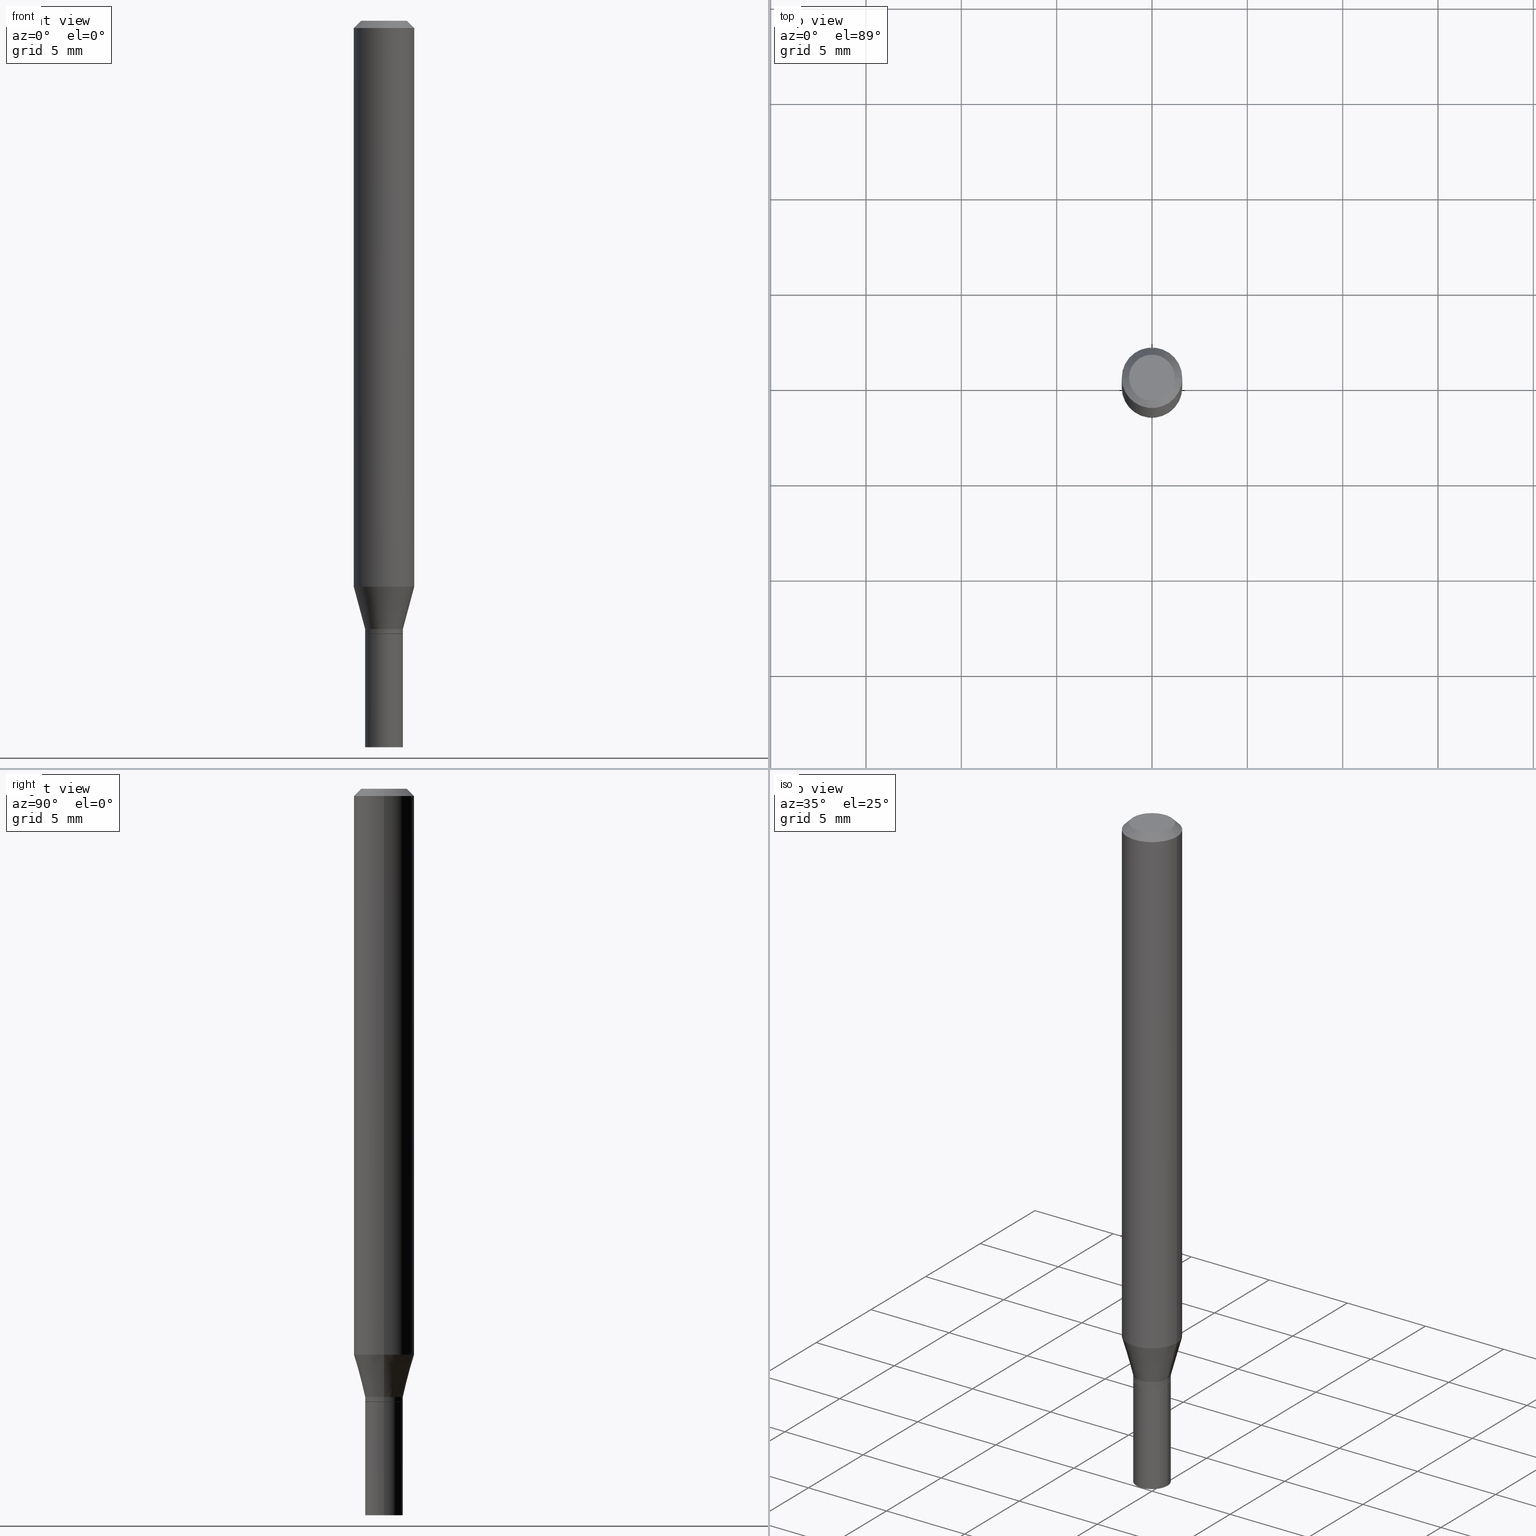
[diagram: canonical four-view strip — front | top / right | iso, engineering-drawing reading convention]
A machine part, canonical four-view strip (front | top / right | iso — engineering-drawing reading convention). The complete STEP part file that produces these views, byte-faithful:
ISO-10303-21;
HEADER;
FILE_DESCRIPTION (( 'STEP AP203' ),
    '1' );
FILE_NAME ('02459.STEP',
    '2024-03-18T20:43:25',
    ( '' ),
    ( '' ),
    'SwSTEP 2.0',
    'SolidWorks 2023',
    '' );
FILE_SCHEMA (( 'CONFIG_CONTROL_DESIGN' ));
ENDSEC;

DATA;
#1 = ORIENTED_EDGE ( 'NONE', *, *, #349, .T. ) ;
#2 = ORGANIZATION ( 'UNSPECIFIED', 'UNSPECIFIED', '' ) ;
#3 = CARTESIAN_POINT ( 'NONE',  ( -0.06250000000000000000, -3.634997286606259442E-15, -1.168296806022131262 ) ) ;
#4 = EDGE_CURVE ( 'NONE', #169, #399, #342, .T. ) ;
#5 = COORDINATED_UNIVERSAL_TIME_OFFSET ( 5, 0, .BEHIND. ) ;
#6 = AXIS2_PLACEMENT_3D ( 'NONE', #291, #462, #286 ) ;
#7 = AXIS2_PLACEMENT_3D ( 'NONE', #355, #358, #20 ) ;
#8 = DIRECTION ( 'NONE',  ( 1.000000000000000000, -6.982962677686274599E-15, 0.000000000000000000 ) ) ;
#9 = DATE_TIME_ROLE ( 'classification_date' ) ;
#10 = VERTEX_POINT ( 'NONE', #198 ) ;
#11 = CARTESIAN_POINT ( 'NONE',  ( 0.06250000000000000000, -4.811533449433679005E-16, -0.01499999999999999944 ) ) ;
#12 = APPROVAL_STATUS ( 'not_yet_approved' ) ;
#13 = EDGE_LOOP ( 'NONE', ( #346, #391 ) ) ;
#14 = ORIENTED_EDGE ( 'NONE', *, *, #257, .T. ) ;
#15 = VERTEX_POINT ( 'NONE', #236 ) ;
#16 = CIRCLE ( 'NONE', #360, 0.03899999999999992362 ) ;
#17 = CONICAL_SURFACE ( 'NONE', #385, 0.03899999999999990974, 0.2617993877991496854 ) ;
#18 = EDGE_LOOP ( 'NONE', ( #133, #307, #200, #410 ) ) ;
#19 = APPROVAL_STATUS ( 'not_yet_approved' ) ;
#20 = DIRECTION ( 'NONE',  ( 1.000000000000000000, -6.982962677686271444E-15, 0.000000000000000000 ) ) ;
#21 = LINE ( 'NONE', #92, #314 ) ;
#22 = CARTESIAN_POINT ( 'NONE',  ( 3.094740774227290865E-29, -4.418469634306001449E-15, -1.265500000000000291 ) ) ;
#23 = CARTESIAN_POINT ( 'NONE',  ( -0.06250000000000000000, 4.440892098500626162E-16, -3.074334431409316114E-30 ) ) ;
#24 = CARTESIAN_POINT ( 'NONE',  ( -0.06250000000000000000, -1.621640148419421952E-15, -0.01499999999999999944 ) ) ;
#25 = LINE ( 'NONE', #69, #352 ) ;
#26 = VECTOR ( 'NONE', #287, 39.37007874015748143 ) ;
#27 = FACE_OUTER_BOUND ( 'NONE', #316, .T. ) ;
#28 = PERSON_AND_ORGANIZATION_ROLE ( 'design_supplier' ) ;
#29 = DIRECTION ( 'NONE',  ( -2.445468806185136597E-29, 3.491481338843145583E-15, 1.000000000000000000 ) ) ;
#30 = FACE_OUTER_BOUND ( 'NONE', #457, .T. ) ;
#31 = DIRECTION ( 'NONE',  ( -2.445468806185136877E-29, 3.491481338843145188E-15, 1.000000000000000000 ) ) ;
#32 = FACE_OUTER_BOUND ( 'NONE', #13, .T. ) ;
#33 = EDGE_LOOP ( 'NONE', ( #271, #420, #387, #238 ) ) ;
#34 = PERSON_AND_ORGANIZATION ( #339, #2 ) ;
#35 = DIRECTION ( 'NONE',  ( -0.7071067811865352493, 2.468850131082128476E-15, -0.7071067811865597852 ) ) ;
#36 = EDGE_CURVE ( 'NONE', #256, #351, #354, .T. ) ;
#37 = AXIS2_PLACEMENT_3D ( 'NONE', #79, #272, #382 ) ;
#38 = PERSON_AND_ORGANIZATION_ROLE ( 'creator' ) ;
#39 = FACE_OUTER_BOUND ( 'NONE', #33, .T. ) ;
#40 = CIRCLE ( 'NONE', #292, 0.03899999999999990974 ) ;
#41 = FACE_OUTER_BOUND ( 'NONE', #123, .T. ) ;
#42 = COORDINATED_UNIVERSAL_TIME_OFFSET ( 5, 0, .BEHIND. ) ;
#43 = DATE_AND_TIME ( #373, #119 ) ;
#44 = PLANE ( 'NONE',  #37 ) ;
#45 = PERSON_AND_ORGANIZATION_ROLE ( 'classification_officer' ) ;
#46 = CONICAL_SURFACE ( 'NONE', #75, 0.06250000000000000000, 0.7853981633974309595 ) ;
#47 = CARTESIAN_POINT ( 'NONE',  ( 0.000000000000000000, 0.000000000000000000, 0.000000000000000000 ) ) ;
#48 = ORIENTED_EDGE ( 'NONE', *, *, #243, .F. ) ;
#49 = ORIENTED_EDGE ( 'NONE', *, *, #428, .T. ) ;
#50 = EDGE_CURVE ( 'NONE', #103, #129, #16, .T. ) ;
#51 = CC_DESIGN_DATE_AND_TIME_ASSIGNMENT ( #343, #9, ( #465 ) ) ;
#52 = DESIGN_CONTEXT ( 'detailed design', #56, 'design' ) ;
#53 = EDGE_LOOP ( 'NONE', ( #334, #111 ) ) ;
#54 =( LENGTH_UNIT ( ) NAMED_UNIT ( * ) SI_UNIT ( $, .METRE. ) );
#55 = CARTESIAN_POINT ( 'NONE',  ( -0.03899999999999990974, -4.108188894640553562E-15, -1.256000000000000227 ) ) ;
#56 = APPLICATION_CONTEXT ( 'configuration controlled 3d designs of mechanical parts and assemblies' ) ;
#57 = ORIENTED_EDGE ( 'NONE', *, *, #265, .F. ) ;
#58 = DIRECTION ( 'NONE',  ( 1.000000000000000000, -6.982962677686266711E-15, 4.876176775795936353E-29 ) ) ;
#59 = VECTOR ( 'NONE', #31, 39.37007874015748143 ) ;
#60 = CARTESIAN_POINT ( 'NONE',  ( 0.000000000000000000, 0.000000000000000000, 0.000000000000000000 ) ) ;
#61 = DIRECTION ( 'NONE',  ( 1.000000000000000000, -6.982962677686272233E-15, 0.000000000000000000 ) ) ;
#62 = DIRECTION ( 'NONE',  ( 0.7071067811865656694, -2.468850131082446387E-15, 0.7071067811865294761 ) ) ;
#63 = MANIFOLD_SOLID_BREP ( 'Body-Move/Copy2[2]', #273 ) ;
#64 = DIRECTION ( 'NONE',  ( 1.000000000000000000, -6.982962677686266711E-15, 4.876176775795935793E-29 ) ) ;
#65 = EDGE_LOOP ( 'NONE', ( #239, #409, #383, #447 ) ) ;
#66 = PRODUCT_DEFINITION_FORMATION_WITH_SPECIFIED_SOURCE ( 'ANY', '', #270, .NOT_KNOWN. ) ;
#67 = APPROVAL_ROLE ( '' ) ;
#68 = FACE_OUTER_BOUND ( 'NONE', #384, .T. ) ;
#69 = CARTESIAN_POINT ( 'NONE',  ( -0.03849999999999999256, -4.146656421707783743E-15, -1.266000000000000014 ) ) ;
#70 = CARTESIAN_POINT ( 'NONE',  ( 0.03899999999999999994, -5.509557552694482989E-15, -1.500000000000000222 ) ) ;
#71 = CARTESIAN_POINT ( 'NONE',  ( -0.06250000000000000000, 3.840629472727444916E-16, -0.01499999999999999944 ) ) ;
#72 = EDGE_CURVE ( 'NONE', #282, #256, #40, .T. ) ;
#73 = DATE_TIME_ROLE ( 'creation_date' ) ;
#74 = DIRECTION ( 'NONE',  ( 1.000000000000000000, -6.982962677686271444E-15, 0.000000000000000000 ) ) ;
#75 = AXIS2_PLACEMENT_3D ( 'NONE', #116, #302, #402 ) ;
#76 = ORIENTED_EDGE ( 'NONE', *, *, #117, .F. ) ;
#77 = ORIENTED_EDGE ( 'NONE', *, *, #91, .T. ) ;
#78 = EDGE_CURVE ( 'NONE', #234, #345, #138, .T. ) ;
#79 = CARTESIAN_POINT ( 'NONE',  ( 3.095963508630383106E-29, -4.420215374975422163E-15, -1.266000000000000014 ) ) ;
#80 = VECTOR ( 'NONE', #62, 39.37007874015748143 ) ;
#81 = COORDINATED_UNIVERSAL_TIME_OFFSET ( 5, 0, .BEHIND. ) ;
#82 = DIRECTION ( 'NONE',  ( 1.000000000000000000, -6.982962677686266711E-15, 4.876176775795936353E-29 ) ) ;
#83 = DIRECTION ( 'NONE',  ( 1.000000000000000000, -6.982962677686258033E-15, 0.000000000000000000 ) ) ;
#84 = ORIENTED_EDGE ( 'NONE', *, *, #157, .T. ) ;
#85 = ORIENTED_EDGE ( 'NONE', *, *, #243, .T. ) ;
#86 = AXIS2_PLACEMENT_3D ( 'NONE', #454, #415, #134 ) ;
#87 = ORIENTED_EDGE ( 'NONE', *, *, #36, .F. ) ;
#88 = FACE_OUTER_BOUND ( 'NONE', #110, .T. ) ;
#89 = ORIENTED_EDGE ( 'NONE', *, *, #349, .F. ) ;
#90 = CARTESIAN_POINT ( 'NONE',  ( 0.000000000000000000, 0.000000000000000000, 0.000000000000000000 ) ) ;
#91 = EDGE_CURVE ( 'NONE', #15, #10, #240, .T. ) ;
#92 = CARTESIAN_POINT ( 'NONE',  ( 0.03899999999999990974, -4.657636106016756115E-15, -1.256000000000000227 ) ) ;
#93 = MECHANICAL_CONTEXT ( 'NONE', #280, 'mechanical' ) ;
#94 = DIRECTION ( 'NONE',  ( -2.445468806185136597E-29, 3.491481338843145583E-15, 1.000000000000000000 ) ) ;
#95 = VECTOR ( 'NONE', #35, 39.37007874015748143 ) ;
#96 = AXIS2_PLACEMENT_3D ( 'NONE', #182, #417, #8 ) ;
#97 = FACE_OUTER_BOUND ( 'NONE', #340, .T. ) ;
#98 = APPROVAL_DATE_TIME ( #210, #126 ) ;
#99 = ORIENTED_EDGE ( 'NONE', *, *, #264, .F. ) ;
#100 = VERTEX_POINT ( 'NONE', #176 ) ;
#101 = CARTESIAN_POINT ( 'NONE',  ( 0.06250000000000000000, -4.515521663811713727E-15, -1.168296806022131262 ) ) ;
#102 = DIRECTION ( 'NONE',  ( -2.445468806185136597E-29, 3.491481338843145583E-15, 1.000000000000000000 ) ) ;
#103 = VERTEX_POINT ( 'NONE', #435 ) ;
#104 = AXIS2_PLACEMENT_3D ( 'NONE', #464, #211, #107 ) ;
#105 = CIRCLE ( 'NONE', #378, 0.03899999999999999994 ) ;
#106 = DIRECTION ( 'NONE',  ( -2.445468806185136597E-29, 3.491481338843145583E-15, 1.000000000000000000 ) ) ;
#107 = DIRECTION ( 'NONE',  ( -1.000000000000000000, 6.982962677686265922E-15, -4.876176775795935793E-29 ) ) ;
#108 = EDGE_LOOP ( 'NONE', ( #381, #414, #165, #220 ) ) ;
#109 = DIRECTION ( 'NONE',  ( -2.445468806185136597E-29, 3.491481338843145583E-15, 1.000000000000000000 ) ) ;
#110 = EDGE_LOOP ( 'NONE', ( #269, #195, #289, #197 ) ) ;
#111 = ORIENTED_EDGE ( 'NONE', *, *, #408, .F. ) ;
#112 = ADVANCED_FACE ( 'NONE', ( #438 ), #323, .T. ) ;
#113 = APPROVAL ( #258, 'UNSPECIFIED' ) ;
#114 = VECTOR ( 'NONE', #423, 39.37007874015748143 ) ;
#115 = AXIS2_PLACEMENT_3D ( 'NONE', #400, #266, #295 ) ;
#116 = CARTESIAN_POINT ( 'NONE',  ( 3.668203209277705088E-31, -5.237222008264718399E-17, -0.01499999999999999944 ) ) ;
#117 = EDGE_CURVE ( 'NONE', #256, #282, #188, .T. ) ;
#118 = AXIS2_PLACEMENT_3D ( 'NONE', #247, #430, #215 ) ;
#119 = LOCAL_TIME ( 16, 43, 25.00000000000000000, #81 ) ;
#120 = PERSON_AND_ORGANIZATION ( #339, #2 ) ;
#121 = FACE_OUTER_BOUND ( 'NONE', #65, .T. ) ;
#122 = ORIENTED_EDGE ( 'NONE', *, *, #237, .F. ) ;
#123 = EDGE_LOOP ( 'NONE', ( #99, #449, #431, #76 ) ) ;
#124 = ADVANCED_FACE ( 'NONE', ( #32 ), #221, .F. ) ;
#125 = CARTESIAN_POINT ( 'NONE',  ( -0.03849999999999999256, -4.144007194533673331E-15, -1.266000000000000014 ) ) ;
#126 = APPROVAL ( #19, 'UNSPECIFIED' ) ;
#127 = VERTEX_POINT ( 'NONE', #394 ) ;
#128 = APPROVAL_ROLE ( '' ) ;
#129 = VERTEX_POINT ( 'NONE', #179 ) ;
#130 = AXIS2_PLACEMENT_3D ( 'NONE', #140, #142, #74 ) ;
#131 = AXIS2_PLACEMENT_3D ( 'NONE', #366, #422, #329 ) ;
#132 = CC_DESIGN_APPROVAL ( #299, ( #465 ) ) ;
#133 = ORIENTED_EDGE ( 'NONE', *, *, #407, .T. ) ;
#134 = DIRECTION ( 'NONE',  ( 1.000000000000000000, -6.982962677686271444E-15, 0.000000000000000000 ) ) ;
#135 = ORIENTED_EDGE ( 'NONE', *, *, #208, .F. ) ;
#136 = LINE ( 'NONE', #23, #189 ) ;
#137 = PERSON_AND_ORGANIZATION_ROLE ( 'design_owner' ) ;
#138 = LINE ( 'NONE', #184, #312 ) ;
#139 = CIRCLE ( 'NONE', #152, 0.06250000000000000000 ) ;
#140 = CARTESIAN_POINT ( 'NONE',  ( 3.095963508630383106E-29, -4.420215374975422163E-15, -1.266000000000000014 ) ) ;
#141 = DIRECTION ( 'NONE',  ( 1.000000000000000000, -6.982962677686258033E-15, 0.000000000000000000 ) ) ;
#142 = DIRECTION ( 'NONE',  ( -2.445468806185136597E-29, 3.491481338843145583E-15, 1.000000000000000000 ) ) ;
#143 = EDGE_LOOP ( 'NONE', ( #310, #85, #451, #463 ) ) ;
#144 = CARTESIAN_POINT ( 'NONE',  ( -1.280979716297259006E-44, 1.828899540070383801E-30, 5.238176471756152972E-16 ) ) ;
#145 = CONICAL_SURFACE ( 'NONE', #404, 0.06250000000000000000, 0.7853981633974309595 ) ;
#146 = APPROVAL_PERSON_ORGANIZATION ( #34, #113, #67 ) ;
#147 = PLANE ( 'NONE',  #115 ) ;
#148 = DIRECTION ( 'NONE',  ( 2.438088387897960049E-29, -3.491481338843145188E-15, -1.000000000000000000 ) ) ;
#149 = DIRECTION ( 'NONE',  ( 1.000000000000000000, -6.982962677686266711E-15, 0.000000000000000000 ) ) ;
#150 = PRODUCT_DEFINITION_SHAPE ( 'NONE', 'NONE',  #379 ) ;
#151 = AXIS2_PLACEMENT_3D ( 'NONE', #460, #29, #64 ) ;
#152 = AXIS2_PLACEMENT_3D ( 'NONE', #392, #217, #363 ) ;
#153 = FACE_OUTER_BOUND ( 'NONE', #180, .T. ) ;
#154 = ADVANCED_FACE ( 'NONE', ( #68 ), #224, .F. ) ;
#155 = EDGE_CURVE ( 'NONE', #327, #345, #283, .T. ) ;
#156 = APPROVAL_ROLE ( '' ) ;
#157 = EDGE_CURVE ( 'NONE', #10, #15, #412, .T. ) ;
#158 = VECTOR ( 'NONE', #356, 39.37007874015748143 ) ;
#159 = CIRCLE ( 'NONE', #7, 0.03849999999999999256 ) ;
#160 = PERSON_AND_ORGANIZATION ( #339, #2 ) ;
#161 = ADVANCED_FACE ( 'NONE', ( #294 ), #304, .T. ) ;
#162 = ORIENTED_EDGE ( 'NONE', *, *, #72, .T. ) ;
#163 = ORIENTED_EDGE ( 'NONE', *, *, #445, .F. ) ;
#164 = DIRECTION ( 'NONE',  ( -2.445468806185136597E-29, 3.491481338843145583E-15, 1.000000000000000000 ) ) ;
#165 = ORIENTED_EDGE ( 'NONE', *, *, #407, .F. ) ;
#166 = PERSON_AND_ORGANIZATION ( #339, #2 ) ;
#167 = ADVANCED_FACE ( 'NONE', ( #288 ), #432, .T. ) ;
#168 = ORIENTED_EDGE ( 'NONE', *, *, #78, .F. ) ;
#169 = VERTEX_POINT ( 'NONE', #250 ) ;
#170 = CIRCLE ( 'NONE', #369, 0.03899999999999999994 ) ;
#171 = AXIS2_PLACEMENT_3D ( 'NONE', #231, #164, #377 ) ;
#172 = CARTESIAN_POINT ( 'NONE',  ( 0.03899999999999999994, -4.692550919405186186E-15, -1.266000000000000014 ) ) ;
#173 = APPLICATION_PROTOCOL_DEFINITION ( 'international standard', 'config_control_design', 1994, #280 ) ;
#174 = DIRECTION ( 'NONE',  ( -2.445468806185136597E-29, 3.491481338843145583E-15, 1.000000000000000000 ) ) ;
#175 = CARTESIAN_POINT ( 'NONE',  ( -0.03899999999999990974, -3.871593090623406502E-15, -1.256000000000000227 ) ) ;
#176 = CARTESIAN_POINT ( 'NONE',  ( -0.03899999999999999994, -4.551607024673631246E-15, -1.500000000000000222 ) ) ;
#177 = LINE ( 'NONE', #325, #26 ) ;
#178 = APPROVAL_DATE_TIME ( #361, #113 ) ;
#179 = CARTESIAN_POINT ( 'NONE',  ( 0.03899999999999992362, -4.690805178735765472E-15, -1.265500000000000291 ) ) ;
#180 = EDGE_LOOP ( 'NONE', ( #135, #1, #274, #122 ) ) ;
#181 = EDGE_CURVE ( 'NONE', #15, #327, #395, .T. ) ;
#182 = CARTESIAN_POINT ( 'NONE',  ( 3.071508820568532122E-29, -4.385300561586992092E-15, -1.256000000000000227 ) ) ;
#183 = COORDINATED_UNIVERSAL_TIME_OFFSET ( 5, 0, .BEHIND. ) ;
#184 = CARTESIAN_POINT ( 'NONE',  ( 0.06250000000000000000, -4.364351673553916694E-16, 3.047610484872459871E-30 ) ) ;
#185 = CARTESIAN_POINT ( 'NONE',  ( 3.095963508630383106E-29, -4.420215374975422163E-15, -1.266000000000000014 ) ) ;
#186 = CARTESIAN_POINT ( 'NONE',  ( 0.03899999999999990974, -2.723355444297637765E-16, 1.901708942560410727E-30 ) ) ;
#187 = SHAPE_DEFINITION_REPRESENTATION ( #150, #442 ) ;
#188 = CIRCLE ( 'NONE', #118, 0.03899999999999990974 ) ;
#189 = VECTOR ( 'NONE', #320, 39.37007874015748143 ) ;
#190 = CYLINDRICAL_SURFACE ( 'NONE', #263, 0.03899999999999990974 ) ;
#191 = PERSON_AND_ORGANIZATION ( #339, #2 ) ;
#192 = LINE ( 'NONE', #11, #425 ) ;
#193 = CARTESIAN_POINT ( 'NONE',  ( 0.06250000000000000000, -4.888073874380388472E-16, -0.01499999999999999944 ) ) ;
#194 = CALENDAR_DATE ( 2024, 18, 3 ) ;
#195 = ORIENTED_EDGE ( 'NONE', *, *, #91, .F. ) ;
#196 = EDGE_CURVE ( 'NONE', #418, #127, #170, .T. ) ;
#197 = ORIENTED_EDGE ( 'NONE', *, *, #155, .T. ) ;
#198 = CARTESIAN_POINT ( 'NONE',  ( 0.04749999999999999362, -4.035134999187569255E-16, 5.238176471756178610E-16 ) ) ;
#199 = EDGE_CURVE ( 'NONE', #129, #282, #397, .T. ) ;
#200 = ORIENTED_EDGE ( 'NONE', *, *, #72, .F. ) ;
#201 = DIRECTION ( 'NONE',  ( -2.445468806185136597E-29, 3.491481338843145583E-15, 1.000000000000000000 ) ) ;
#202 = EDGE_LOOP ( 'NONE', ( #260, #89 ) ) ;
#203 = ADVANCED_FACE ( 'NONE', ( #39 ), #145, .T. ) ;
#204 = CC_DESIGN_APPROVAL ( #113, ( #66 ) ) ;
#205 = CARTESIAN_POINT ( 'NONE',  ( 3.094740774227290865E-29, -4.418469634306001449E-15, -1.265500000000000291 ) ) ;
#206 = FACE_OUTER_BOUND ( 'NONE', #202, .T. ) ;
#207 = EDGE_CURVE ( 'NONE', #399, #103, #25, .T. ) ;
#208 = EDGE_CURVE ( 'NONE', #100, #127, #375, .T. ) ;
#209 = DIRECTION ( 'NONE',  ( 1.000000000000000000, -6.982962677686258033E-15, 0.000000000000000000 ) ) ;
#210 = DATE_AND_TIME ( #426, #276 ) ;
#211 = DIRECTION ( 'NONE',  ( 2.438088387897960049E-29, -3.491481338843145188E-15, -1.000000000000000000 ) ) ;
#212 = CC_DESIGN_DATE_AND_TIME_ASSIGNMENT ( #228, #73, ( #379 ) ) ;
#213 = CARTESIAN_POINT ( 'NONE',  ( 3.668203209277704895E-29, -5.237222008264718177E-15, -1.500000000000000222 ) ) ;
#214 = CARTESIAN_POINT ( 'NONE',  ( 0.03849999999999999256, -4.689059438066343968E-15, -1.266000000000000014 ) ) ;
#215 = DIRECTION ( 'NONE',  ( 1.000000000000000000, -6.982962677686274599E-15, 0.000000000000000000 ) ) ;
#216 = AXIS2_PLACEMENT_3D ( 'NONE', #144, #359, #367 ) ;
#217 = DIRECTION ( 'NONE',  ( -2.445468806185136597E-29, 3.491481338843145583E-15, 1.000000000000000000 ) ) ;
#218 = LINE ( 'NONE', #364, #59 ) ;
#219 = DIRECTION ( 'NONE',  ( -1.000000000000000000, 6.982962677686265922E-15, -4.876176775795935793E-29 ) ) ;
#220 = ORIENTED_EDGE ( 'NONE', *, *, #309, .F. ) ;
#221 = PLANE ( 'NONE',  #104 ) ;
#222 = MANIFOLD_SOLID_BREP ( 'Body-Move/Copy2[1]', #424 ) ;
#223 = PERSON_AND_ORGANIZATION ( #339, #2 ) ;
#224 = PLANE ( 'NONE',  #241 ) ;
#225 = AXIS2_PLACEMENT_3D ( 'NONE', #444, #278, #58 ) ;
#226 = PRODUCT_RELATED_PRODUCT_CATEGORY ( 'detail', '', ( #270 ) ) ;
#227 = DIRECTION ( 'NONE',  ( -2.445468806185136597E-29, 3.491481338843145583E-15, 1.000000000000000000 ) ) ;
#228 = DATE_AND_TIME ( #246, #293 ) ;
#229 = APPROVAL_PERSON_ORGANIZATION ( #277, #126, #128 ) ;
#230 = FACE_OUTER_BOUND ( 'NONE', #18, .T. ) ;
#231 = CARTESIAN_POINT ( 'NONE',  ( 3.095963508630383106E-29, -4.420215374975422163E-15, -1.266000000000000014 ) ) ;
#232 = ORIENTED_EDGE ( 'NONE', *, *, #208, .T. ) ;
#233 = CIRCLE ( 'NONE', #458, 0.03899999999999999994 ) ;
#234 = VERTEX_POINT ( 'NONE', #101 ) ;
#235 =( NAMED_UNIT ( * ) SI_UNIT ( $, .STERADIAN. ) SOLID_ANGLE_UNIT ( ) );
#236 = CARTESIAN_POINT ( 'NONE',  ( -0.04749999999999999362, 3.578768372314219874E-16, 5.238176471756128320E-16 ) ) ;
#237 = EDGE_CURVE ( 'NONE', #127, #418, #441, .T. ) ;
#238 = ORIENTED_EDGE ( 'NONE', *, *, #181, .F. ) ;
#239 = ORIENTED_EDGE ( 'NONE', *, *, #207, .F. ) ;
#240 = CIRCLE ( 'NONE', #6, 0.04749999999999999362 ) ;
#241 = AXIS2_PLACEMENT_3D ( 'NONE', #326, #148, #219 ) ;
#242 =( GEOMETRIC_REPRESENTATION_CONTEXT ( 3 ) GLOBAL_UNCERTAINTY_ASSIGNED_CONTEXT ( ( #455 ) ) GLOBAL_UNIT_ASSIGNED_CONTEXT ( ( #315, #419, #235 ) ) REPRESENTATION_CONTEXT ( 'NONE', 'WORKASPACE' ) );
#243 = EDGE_CURVE ( 'NONE', #351, #234, #324, .T. ) ;
#244 = CARTESIAN_POINT ( 'NONE',  ( 2.857033395492849775E-29, -4.079086496456322058E-15, -1.168296806022131262 ) ) ;
#245 = PERSON_AND_ORGANIZATION ( #339, #2 ) ;
#246 = CALENDAR_DATE ( 2024, 18, 3 ) ;
#247 = CARTESIAN_POINT ( 'NONE',  ( 3.071508820568532122E-29, -4.385300561586992092E-15, -1.256000000000000227 ) ) ;
#248 = VERTEX_POINT ( 'NONE', #70 ) ;
#249 = CARTESIAN_POINT ( 'NONE',  ( -0.03899999999999999994, 2.771116669464390721E-16, -1.918384685199413078E-30 ) ) ;
#250 = CARTESIAN_POINT ( 'NONE',  ( 0.03849999999999999256, -4.689059438066343968E-15, -1.266000000000000014 ) ) ;
#251 = AXIS2_PLACEMENT_3D ( 'NONE', #255, #102, #330 ) ;
#252 = ORIENTED_EDGE ( 'NONE', *, *, #117, .T. ) ;
#253 = AXIS2_PLACEMENT_3D ( 'NONE', #244, #456, #390 ) ;
#254 = DIRECTION ( 'NONE',  ( 1.000000000000000000, -6.982962677686265922E-15, 4.876176775795935793E-29 ) ) ;
#255 = CARTESIAN_POINT ( 'NONE',  ( 0.000000000000000000, 0.000000000000000000, 0.000000000000000000 ) ) ;
#256 = VERTEX_POINT ( 'NONE', #175 ) ;
#257 = EDGE_CURVE ( 'NONE', #234, #351, #285, .T. ) ;
#258 = APPROVAL_STATUS ( 'not_yet_approved' ) ;
#259 = DIRECTION ( 'NONE',  ( 1.000000000000000000, -6.982962677686258033E-15, 0.000000000000000000 ) ) ;
#260 = ORIENTED_EDGE ( 'NONE', *, *, #421, .F. ) ;
#261 = CC_DESIGN_PERSON_AND_ORGANIZATION_ASSIGNMENT ( #166, #137, ( #270 ) ) ;
#262 = DIRECTION ( 'NONE',  ( -1.000000000000000000, 6.982962677686266711E-15, 0.000000000000000000 ) ) ;
#263 = AXIS2_PLACEMENT_3D ( 'NONE', #47, #403, #82 ) ;
#264 = EDGE_CURVE ( 'NONE', #103, #256, #218, .T. ) ;
#265 = EDGE_CURVE ( 'NONE', #282, #234, #21, .T. ) ;
#266 = DIRECTION ( 'NONE',  ( -2.438088387897960049E-29, 3.491481338843145188E-15, 1.000000000000000000 ) ) ;
#267 = ADVANCED_FACE ( 'NONE', ( #97 ), #17, .T. ) ;
#268 = LOCAL_TIME ( 16, 43, 25.00000000000000000, #5 ) ;
#269 = ORIENTED_EDGE ( 'NONE', *, *, #376, .F. ) ;
#270 = PRODUCT ( '02459', '02459', '', ( #93 ) ) ;
#271 = ORIENTED_EDGE ( 'NONE', *, *, #157, .F. ) ;
#272 = DIRECTION ( 'NONE',  ( -2.438088387897960049E-29, 3.491481338843145188E-15, 1.000000000000000000 ) ) ;
#273 = CLOSED_SHELL ( 'NONE', ( #337, #161, #203, #167, #332, #267, #112, #448, #154, #341, #371, #406 ) ) ;
#274 = ORIENTED_EDGE ( 'NONE', *, *, #445, .T. ) ;
#275 = CC_DESIGN_PERSON_AND_ORGANIZATION_ASSIGNMENT ( #120, #45, ( #465 ) ) ;
#276 = LOCAL_TIME ( 16, 43, 25.00000000000000000, #318 ) ;
#277 = PERSON_AND_ORGANIZATION ( #339, #2 ) ;
#278 = DIRECTION ( 'NONE',  ( -2.445468806185136597E-29, 3.491481338843145583E-15, 1.000000000000000000 ) ) ;
#279 = EDGE_LOOP ( 'NONE', ( #14, #49, #437, #168 ) ) ;
#280 = APPLICATION_CONTEXT ( 'configuration controlled 3d designs of mechanical parts and assemblies' ) ;
#281 = CARTESIAN_POINT ( 'NONE',  ( 3.095963508630383106E-29, -4.420215374975422163E-15, -1.266000000000000014 ) ) ;
#282 = VERTEX_POINT ( 'NONE', #290 ) ;
#283 = CIRCLE ( 'NONE', #440, 0.06250000000000000000 ) ;
#284 = APPLICATION_PROTOCOL_DEFINITION ( 'international standard', 'config_control_design', 1994, #56 ) ;
#285 = CIRCLE ( 'NONE', #131, 0.06250000000000000000 ) ;
#286 = DIRECTION ( 'NONE',  ( 1.000000000000000000, -6.982962677686267499E-15, 4.852736867747366768E-29 ) ) ;
#287 = DIRECTION ( 'NONE',  ( -2.445468806185136877E-29, 3.491481338843145188E-15, 1.000000000000000000 ) ) ;
#288 = FACE_OUTER_BOUND ( 'NONE', #279, .T. ) ;
#289 = ORIENTED_EDGE ( 'NONE', *, *, #181, .T. ) ;
#290 = CARTESIAN_POINT ( 'NONE',  ( 0.03899999999999990974, -4.657636106016756115E-15, -1.256000000000000227 ) ) ;
#291 = CARTESIAN_POINT ( 'NONE',  ( -1.280979716297259006E-44, 1.828899540070383801E-30, 5.238176471756152972E-16 ) ) ;
#292 = AXIS2_PLACEMENT_3D ( 'NONE', #357, #174, #319 ) ;
#293 = LOCAL_TIME ( 16, 43, 25.00000000000000000, #183 ) ;
#294 = FACE_OUTER_BOUND ( 'NONE', #108, .T. ) ;
#295 = DIRECTION ( 'NONE',  ( 1.000000000000000000, -6.982962677686265922E-15, 4.876176775795935793E-29 ) ) ;
#296 = DIMENSIONAL_EXPONENTS ( 1.000000000000000000, 0.000000000000000000, 0.000000000000000000, 0.000000000000000000, 0.000000000000000000, 0.000000000000000000, 0.000000000000000000 ) ;
#297 = PERSON_AND_ORGANIZATION_ROLE ( 'creator' ) ;
#298 = DIRECTION ( 'NONE',  ( -2.445468806185136597E-29, 3.491481338843145583E-15, 1.000000000000000000 ) ) ;
#299 = APPROVAL ( #12, 'UNSPECIFIED' ) ;
#300 = DIRECTION ( 'NONE',  ( -0.7071067811865656694, 7.493145998870420424E-15, 0.7071067811865294761 ) ) ;
#301 = CONICAL_SURFACE ( 'NONE', #96, 0.03899999999999990974, 0.2617993877991496854 ) ;
#302 = DIRECTION ( 'NONE',  ( 2.445468806185136597E-29, -3.491481338843145583E-15, -1.000000000000000000 ) ) ;
#303 = CYLINDRICAL_SURFACE ( 'NONE', #413, 0.03899999999999999994 ) ;
#304 = CONICAL_SURFACE ( 'NONE', #130, 0.03849999999999999256, 0.7853981633974739252 ) ;
#305 = CONICAL_SURFACE ( 'NONE', #171, 0.03849999999999999256, 0.7853981633974739252 ) ;
#306 = DIRECTION ( 'NONE',  ( -2.445468806185136597E-29, 3.491481338843145583E-15, 1.000000000000000000 ) ) ;
#307 = ORIENTED_EDGE ( 'NONE', *, *, #264, .T. ) ;
#308 = CARTESIAN_POINT ( 'NONE',  ( 3.668203209277704895E-29, -5.237222008264718177E-15, -1.500000000000000222 ) ) ;
#309 = EDGE_CURVE ( 'NONE', #169, #129, #459, .T. ) ;
#310 = ORIENTED_EDGE ( 'NONE', *, *, #428, .F. ) ;
#311 = ADVANCED_FACE ( 'NONE', ( #27 ), #434, .T. ) ;
#312 = VECTOR ( 'NONE', #362, 39.37007874015748143 ) ;
#313 = ORIENTED_EDGE ( 'NONE', *, *, #257, .F. ) ;
#314 = VECTOR ( 'NONE', #461, 39.37007874015748143 ) ;
#315 =( CONVERSION_BASED_UNIT ( 'INCH', #322 ) LENGTH_UNIT ( ) NAMED_UNIT ( #296 ) );
#316 = EDGE_LOOP ( 'NONE', ( #350, #232, #453, #163 ) ) ;
#317 = ADVANCED_FACE ( 'NONE', ( #206 ), #147, .F. ) ;
#318 = COORDINATED_UNIVERSAL_TIME_OFFSET ( 5, 0, .BEHIND. ) ;
#319 = DIRECTION ( 'NONE',  ( 1.000000000000000000, -6.982962677686274599E-15, 0.000000000000000000 ) ) ;
#320 = DIRECTION ( 'NONE',  ( -2.445468806185136877E-29, 3.491481338843145188E-15, 1.000000000000000000 ) ) ;
#321 = CARTESIAN_POINT ( 'NONE',  ( 3.071508820568532122E-29, -4.385300561586992092E-15, -1.256000000000000227 ) ) ;
#322 = LENGTH_MEASURE_WITH_UNIT ( LENGTH_MEASURE( 0.02539999999999999897 ), #54 );
#323 = CYLINDRICAL_SURFACE ( 'NONE', #151, 0.06250000000000000000 ) ;
#324 = CIRCLE ( 'NONE', #253, 0.06250000000000000000 ) ;
#325 = CARTESIAN_POINT ( 'NONE',  ( 0.03899999999999999994, -2.723355444297643682E-16, 1.901708942560414931E-30 ) ) ;
#326 = CARTESIAN_POINT ( 'NONE',  ( 3.316907271900976096E-16, 0.04749999999999999362, 9.606345999275825217E-17 ) ) ;
#327 = VERTEX_POINT ( 'NONE', #24 ) ;
#328 = EDGE_CURVE ( 'NONE', #345, #327, #139, .T. ) ;
#329 = DIRECTION ( 'NONE',  ( 1.000000000000000000, -6.982962677686270655E-15, 0.000000000000000000 ) ) ;
#330 = DIRECTION ( 'NONE',  ( 1.000000000000000000, -6.982962677686266711E-15, 4.876176775795935793E-29 ) ) ;
#331 = APPROVAL_PERSON_ORGANIZATION ( #160, #299, #156 ) ;
#332 = ADVANCED_FACE ( 'NONE', ( #30 ), #301, .T. ) ;
#333 = CARTESIAN_POINT ( 'NONE',  ( 3.668203209277705088E-31, -5.237222008264718399E-17, -0.01499999999999999944 ) ) ;
#334 = ORIENTED_EDGE ( 'NONE', *, *, #4, .F. ) ;
#335 = CC_DESIGN_PERSON_AND_ORGANIZATION_ASSIGNMENT ( #191, #28, ( #66 ) ) ;
#336 = AXIS2_PLACEMENT_3D ( 'NONE', #281, #393, #209 ) ;
#337 = ADVANCED_FACE ( 'NONE', ( #230 ), #190, .T. ) ;
#338 = CYLINDRICAL_SURFACE ( 'NONE', #225, 0.03899999999999990974 ) ;
#339 = PERSON ( 'UNSPECIFIED', 'UNSPECIFIED', 'UNSPECIFIED', ('UNSPECIFIED'), ('UNSPECIFIED'), ('UNSPECIFIED') ) ;
#340 = EDGE_LOOP ( 'NONE', ( #87, #252, #353, #48 ) ) ;
#341 = ADVANCED_FACE ( 'NONE', ( #374 ), #44, .F. ) ;
#342 = CIRCLE ( 'NONE', #86, 0.03849999999999999256 ) ;
#343 = DATE_AND_TIME ( #194, #268 ) ;
#344 = CC_DESIGN_APPROVAL ( #126, ( #379 ) ) ;
#345 = VERTEX_POINT ( 'NONE', #193 ) ;
#346 = ORIENTED_EDGE ( 'NONE', *, *, #196, .T. ) ;
#347 = CC_DESIGN_PERSON_AND_ORGANIZATION_ASSIGNMENT ( #223, #38, ( #66 ) ) ;
#348 = SECURITY_CLASSIFICATION_LEVEL ( 'unclassified' ) ;
#349 = EDGE_CURVE ( 'NONE', #100, #248, #105, .T. ) ;
#350 = ORIENTED_EDGE ( 'NONE', *, *, #421, .T. ) ;
#351 = VERTEX_POINT ( 'NONE', #3 ) ;
#352 = VECTOR ( 'NONE', #300, 39.37007874015748143 ) ;
#353 = ORIENTED_EDGE ( 'NONE', *, *, #265, .T. ) ;
#354 = LINE ( 'NONE', #55, #114 ) ;
#355 = CARTESIAN_POINT ( 'NONE',  ( 3.095963508630383106E-29, -4.420215374975422163E-15, -1.266000000000000014 ) ) ;
#356 = DIRECTION ( 'NONE',  ( -2.445468806185136877E-29, 3.491481338843145188E-15, 1.000000000000000000 ) ) ;
#357 = CARTESIAN_POINT ( 'NONE',  ( 3.071508820568532122E-29, -4.385300561586992092E-15, -1.256000000000000227 ) ) ;
#358 = DIRECTION ( 'NONE',  ( -2.445468806185136597E-29, 3.491481338843145583E-15, 1.000000000000000000 ) ) ;
#359 = DIRECTION ( 'NONE',  ( -2.445468806185136597E-29, 3.491481338843145583E-15, 1.000000000000000000 ) ) ;
#360 = AXIS2_PLACEMENT_3D ( 'NONE', #22, #94, #61 ) ;
#361 = DATE_AND_TIME ( #396, #405 ) ;
#362 = DIRECTION ( 'NONE',  ( -2.445468806185136877E-29, 3.491481338843145188E-15, 1.000000000000000000 ) ) ;
#363 = DIRECTION ( 'NONE',  ( 1.000000000000000000, -6.982962677686266711E-15, 0.000000000000000000 ) ) ;
#364 = CARTESIAN_POINT ( 'NONE',  ( -0.03899999999999990974, 2.771116669464384311E-16, -1.918384685199408874E-30 ) ) ;
#365 = CARTESIAN_POINT ( 'NONE',  ( 3.668203209277705088E-31, -5.237222008264718399E-17, -0.01499999999999999944 ) ) ;
#366 = CARTESIAN_POINT ( 'NONE',  ( 2.857033395492849775E-29, -4.079086496456322058E-15, -1.168296806022131262 ) ) ;
#367 = DIRECTION ( 'NONE',  ( 1.000000000000000000, -6.982962677686267499E-15, 4.852736867747366768E-29 ) ) ;
#368 = DIRECTION ( 'NONE',  ( -2.445468806185136877E-29, 3.491481338843145188E-15, 1.000000000000000000 ) ) ;
#369 = AXIS2_PLACEMENT_3D ( 'NONE', #185, #109, #259 ) ;
#370 = CIRCLE ( 'NONE', #398, 0.03899999999999992362 ) ;
#371 = ADVANCED_FACE ( 'NONE', ( #121 ), #305, .T. ) ;
#372 = DIRECTION ( 'NONE',  ( 1.000000000000000000, -6.982962677686265922E-15, 4.876176775795935793E-29 ) ) ;
#373 = CALENDAR_DATE ( 2024, 18, 3 ) ;
#374 = FACE_OUTER_BOUND ( 'NONE', #53, .T. ) ;
#375 = LINE ( 'NONE', #249, #158 ) ;
#376 = EDGE_CURVE ( 'NONE', #10, #345, #192, .T. ) ;
#377 = DIRECTION ( 'NONE',  ( 1.000000000000000000, -6.982962677686271444E-15, 0.000000000000000000 ) ) ;
#378 = AXIS2_PLACEMENT_3D ( 'NONE', #308, #306, #83 ) ;
#379 = PRODUCT_DEFINITION ( 'UNKNOWN', '', #66, #52 ) ;
#380 = CC_DESIGN_SECURITY_CLASSIFICATION ( #465, ( #66 ) ) ;
#381 = ORIENTED_EDGE ( 'NONE', *, *, #4, .T. ) ;
#382 = DIRECTION ( 'NONE',  ( 1.000000000000000000, -6.982962677686265922E-15, 4.876176775795935793E-29 ) ) ;
#383 = ORIENTED_EDGE ( 'NONE', *, *, #309, .T. ) ;
#384 = EDGE_LOOP ( 'NONE', ( #77, #84 ) ) ;
#385 = AXIS2_PLACEMENT_3D ( 'NONE', #321, #429, #388 ) ;
#386 = DIRECTION ( 'NONE',  ( 0.000000000000000000, 0.000000000000000000, 1.000000000000000000 ) ) ;
#387 = ORIENTED_EDGE ( 'NONE', *, *, #328, .T. ) ;
#388 = DIRECTION ( 'NONE',  ( 1.000000000000000000, -6.982962677686274599E-15, 0.000000000000000000 ) ) ;
#389 = DIRECTION ( 'NONE',  ( 1.000000000000000000, -6.982962677686272233E-15, 0.000000000000000000 ) ) ;
#390 = DIRECTION ( 'NONE',  ( 1.000000000000000000, -6.982962677686270655E-15, 0.000000000000000000 ) ) ;
#391 = ORIENTED_EDGE ( 'NONE', *, *, #237, .T. ) ;
#392 = CARTESIAN_POINT ( 'NONE',  ( 3.668203209277705088E-31, -5.237222008264718399E-17, -0.01499999999999999944 ) ) ;
#393 = DIRECTION ( 'NONE',  ( -2.445468806185136597E-29, 3.491481338843145583E-15, 1.000000000000000000 ) ) ;
#394 = CARTESIAN_POINT ( 'NONE',  ( -0.03899999999999999994, -4.551607024673631246E-15, -1.266000000000000014 ) ) ;
#395 = LINE ( 'NONE', #71, #95 ) ;
#396 = CALENDAR_DATE ( 2024, 18, 3 ) ;
#397 = LINE ( 'NONE', #186, #433 ) ;
#398 = AXIS2_PLACEMENT_3D ( 'NONE', #205, #416, #389 ) ;
#399 = VERTEX_POINT ( 'NONE', #125 ) ;
#400 = CARTESIAN_POINT ( 'NONE',  ( 3.576687321579069994E-29, -5.368277968210015545E-15, -1.500000000000000222 ) ) ;
#401 = ADVANCED_FACE ( 'NONE', ( #153 ), #303, .T. ) ;
#402 = DIRECTION ( 'NONE',  ( -1.000000000000000000, 6.982962677686266711E-15, 0.000000000000000000 ) ) ;
#403 = DIRECTION ( 'NONE',  ( -2.445468806185136597E-29, 3.491481338843145583E-15, 1.000000000000000000 ) ) ;
#404 = AXIS2_PLACEMENT_3D ( 'NONE', #333, #466, #262 ) ;
#405 = LOCAL_TIME ( 16, 43, 25.00000000000000000, #42 ) ;
#406 = ADVANCED_FACE ( 'NONE', ( #41 ), #338, .T. ) ;
#407 = EDGE_CURVE ( 'NONE', #129, #103, #370, .T. ) ;
#408 = EDGE_CURVE ( 'NONE', #399, #169, #159, .T. ) ;
#409 = ORIENTED_EDGE ( 'NONE', *, *, #408, .T. ) ;
#410 = ORIENTED_EDGE ( 'NONE', *, *, #199, .F. ) ;
#411 = DIRECTION ( 'NONE',  ( 0.7071067811865352493, -7.319954787623213447E-15, -0.7071067811865597852 ) ) ;
#412 = CIRCLE ( 'NONE', #216, 0.04749999999999999362 ) ;
#413 = AXIS2_PLACEMENT_3D ( 'NONE', #443, #227, #372 ) ;
#414 = ORIENTED_EDGE ( 'NONE', *, *, #207, .T. ) ;
#415 = DIRECTION ( 'NONE',  ( -2.445468806185136597E-29, 3.491481338843145583E-15, 1.000000000000000000 ) ) ;
#416 = DIRECTION ( 'NONE',  ( -2.445468806185136597E-29, 3.491481338843145583E-15, 1.000000000000000000 ) ) ;
#417 = DIRECTION ( 'NONE',  ( -2.445468806185136597E-29, 3.491481338843145583E-15, 1.000000000000000000 ) ) ;
#418 = VERTEX_POINT ( 'NONE', #172 ) ;
#419 =( NAMED_UNIT ( * ) PLANE_ANGLE_UNIT ( ) SI_UNIT ( $, .RADIAN. ) );
#420 = ORIENTED_EDGE ( 'NONE', *, *, #376, .T. ) ;
#421 = EDGE_CURVE ( 'NONE', #248, #100, #233, .T. ) ;
#422 = DIRECTION ( 'NONE',  ( -2.445468806185136597E-29, 3.491481338843145583E-15, 1.000000000000000000 ) ) ;
#423 = DIRECTION ( 'NONE',  ( -0.2588190451025210170, 5.211531920934547886E-15, 0.9659258262890682012 ) ) ;
#424 = CLOSED_SHELL ( 'NONE', ( #311, #317, #401, #124 ) ) ;
#425 = VECTOR ( 'NONE', #411, 39.37007874015748143 ) ;
#426 = CALENDAR_DATE ( 2024, 18, 3 ) ;
#427 = ORIENTED_EDGE ( 'NONE', *, *, #36, .T. ) ;
#428 = EDGE_CURVE ( 'NONE', #351, #327, #136, .T. ) ;
#429 = DIRECTION ( 'NONE',  ( -2.445468806185136597E-29, 3.491481338843145583E-15, 1.000000000000000000 ) ) ;
#430 = DIRECTION ( 'NONE',  ( -2.445468806185136597E-29, 3.491481338843145583E-15, 1.000000000000000000 ) ) ;
#431 = ORIENTED_EDGE ( 'NONE', *, *, #199, .T. ) ;
#432 = CYLINDRICAL_SURFACE ( 'NONE', #251, 0.06250000000000000000 ) ;
#433 = VECTOR ( 'NONE', #368, 39.37007874015748143 ) ;
#434 = CYLINDRICAL_SURFACE ( 'NONE', #436, 0.03899999999999999994 ) ;
#435 = CARTESIAN_POINT ( 'NONE',  ( -0.03899999999999992362, -4.141357967359562919E-15, -1.265500000000000291 ) ) ;
#436 = AXIS2_PLACEMENT_3D ( 'NONE', #60, #106, #254 ) ;
#437 = ORIENTED_EDGE ( 'NONE', *, *, #328, .F. ) ;
#438 = FACE_OUTER_BOUND ( 'NONE', #143, .T. ) ;
#439 = APPROVAL_DATE_TIME ( #43, #299 ) ;
#440 = AXIS2_PLACEMENT_3D ( 'NONE', #365, #298, #149 ) ;
#441 = CIRCLE ( 'NONE', #336, 0.03899999999999999994 ) ;
#442 = ADVANCED_BREP_SHAPE_REPRESENTATION ( '02459', ( #222, #63, #452 ), #242 ) ;
#443 = CARTESIAN_POINT ( 'NONE',  ( 0.000000000000000000, 0.000000000000000000, 0.000000000000000000 ) ) ;
#444 = CARTESIAN_POINT ( 'NONE',  ( 0.000000000000000000, 0.000000000000000000, 0.000000000000000000 ) ) ;
#445 = EDGE_CURVE ( 'NONE', #248, #418, #177, .T. ) ;
#446 = CC_DESIGN_PERSON_AND_ORGANIZATION_ASSIGNMENT ( #245, #297, ( #379 ) ) ;
#447 = ORIENTED_EDGE ( 'NONE', *, *, #50, .F. ) ;
#448 = ADVANCED_FACE ( 'NONE', ( #88 ), #46, .T. ) ;
#449 = ORIENTED_EDGE ( 'NONE', *, *, #50, .T. ) ;
#450 = DIRECTION ( 'NONE',  ( 1.000000000000000000, 0.000000000000000000, 0.000000000000000000 ) ) ;
#451 = ORIENTED_EDGE ( 'NONE', *, *, #78, .T. ) ;
#452 = AXIS2_PLACEMENT_3D ( 'NONE', #90, #386, #450 ) ;
#453 = ORIENTED_EDGE ( 'NONE', *, *, #196, .F. ) ;
#454 = CARTESIAN_POINT ( 'NONE',  ( 3.095963508630383106E-29, -4.420215374975422163E-15, -1.266000000000000014 ) ) ;
#455 = UNCERTAINTY_MEASURE_WITH_UNIT (LENGTH_MEASURE( 1.000000000000000082E-05 ), #315, 'distance_accuracy_value', 'NONE');
#456 = DIRECTION ( 'NONE',  ( -2.445468806185136597E-29, 3.491481338843145583E-15, 1.000000000000000000 ) ) ;
#457 = EDGE_LOOP ( 'NONE', ( #162, #427, #313, #57 ) ) ;
#458 = AXIS2_PLACEMENT_3D ( 'NONE', #213, #201, #141 ) ;
#459 = LINE ( 'NONE', #214, #80 ) ;
#460 = CARTESIAN_POINT ( 'NONE',  ( 0.000000000000000000, 0.000000000000000000, 0.000000000000000000 ) ) ;
#461 = DIRECTION ( 'NONE',  ( 0.2588190451025210170, 1.565188264969624531E-15, 0.9659258262890682012 ) ) ;
#462 = DIRECTION ( 'NONE',  ( -2.445468806185136597E-29, 3.491481338843145583E-15, 1.000000000000000000 ) ) ;
#463 = ORIENTED_EDGE ( 'NONE', *, *, #155, .F. ) ;
#464 = CARTESIAN_POINT ( 'NONE',  ( 2.723355444297953310E-16, 0.03899999999999557293, -1.266000000000000014 ) ) ;
#465 = SECURITY_CLASSIFICATION ( '', '', #348 ) ;
#466 = DIRECTION ( 'NONE',  ( 2.445468806185136597E-29, -3.491481338843145583E-15, -1.000000000000000000 ) ) ;
ENDSEC;
END-ISO-10303-21;
